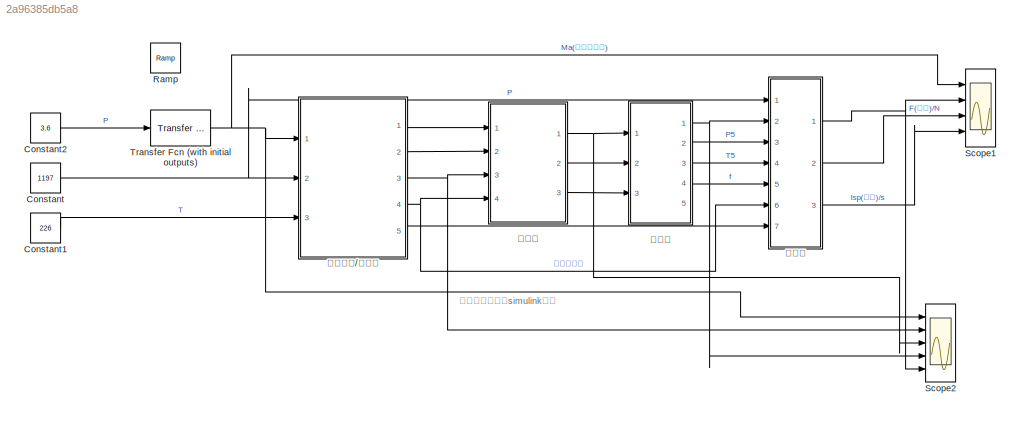
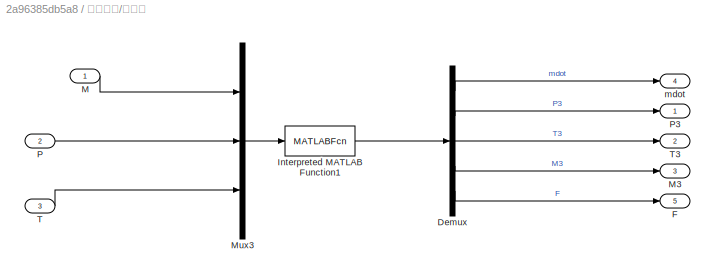
MODEL slx_2a96385db5a8
KIND model
CONFIG AbsTol = auto
CONFIG EnableMultiTasking = off
CONFIG FixedStep = auto
CONFIG MaxStep = auto
CONFIG MinStep = auto
CONFIG RelTol = 1e-3
CONFIG SampleTimeConstraint = Unconstrained
CONFIG Solver = VariableStepAuto
CONFIG SolverName = VariableStepAuto
CONFIG StartTime = 0.0
CONFIG StopTime = 10
BLOCK [Constant] Constant
  Value = 1197
BLOCK [Constant] Constant1
  Value = 226
BLOCK [Constant] Constant2
  Value = 3.6
BLOCK [Reference] Ramp  REF=simulink/Sources/Ramp
  Ports = [0, 1]
  SourceBlock = simulink/Sources/Ramp
  SourceProductBaseCode = SL
  SourceProductName = Simulink
  SourceType = Ramp
BLOCK [Scope] Scope1
  Floating = off
  NumInputPorts = 4
  Ports = [4]
  ScopeSpecificationString = Simulink.scopes.TimeScopeBlockCfg('CurrentConfiguration', extmgr.ConfigurationSet(extmgr.Configuration('Core','General UI',true,'FigureColor',[1 1 1]),extmgr.Configuration('Core','Source UI',true),extmgr.Configuration('Sources','WiredSimulink',true,'DataLoggingVariableName','ScopeData1'),extmgr.Configuration('Visuals','Time Domain',true,'SerializedDisplays',{struct('MinYLimReal','2.47584','MaxYLim...<+3594ch>
BLOCK [Scope] Scope2
  Floating = off
  NumInputPorts = 5
  Ports = [5]
  ScopeSpecificationString = Simulink.scopes.TimeScopeBlockCfg('CurrentConfiguration', extmgr.ConfigurationSet(extmgr.Configuration('Core','General UI',true,'FigureColor',[1 1 1]),extmgr.Configuration('Core','Source UI',true),extmgr.Configuration('Sources','WiredSimulink',true,'DataLoggingVariableName','ScopeData1'),extmgr.Configuration('Visuals','Time Domain',true,'SerializedDisplays',{struct('MinYLimReal','2.47584','MaxYLim...<+5353ch>
BLOCK [Reference] Transfer Fcn (with initial outputs)  REF=simulink_extras/Additional
Linear/Transfer Fcn
(with initial outputs)
  Ports = [1, 1]
  SourceBlock = simulink_extras/Additional\nLinear/Transfer Fcn\n(with initial outputs)
  SourceProductBaseCode = SL
  SourceProductName = Simulink
  SourceType = Transfer Function with Initial Outputs
BLOCK [SubSystem] 前体压缩//进气道
  Ports = [3, 5]
  RequestExecContextInheritance = off
BLOCK [Demux] 前体压缩//进气道/Demux
  DisplayOption = bar
  Outputs = 5
  Ports = [1, 5]
BLOCK [Outport] 前体压缩//进气道/F
  IconDisplay = Port number
  Port = 5
BLOCK [MATLABFcn] 前体压缩//进气道/Interpreted MATLAB Function1
  MATLABFcn = inlet_v(u(1),u(2),u(3))
  OutputDimensions = 5
  Ports = [1, 1]
BLOCK [Inport] 前体压缩//进气道/M
  IconDisplay = Port number
BLOCK [Outport] 前体压缩//进气道/M3
  IconDisplay = Port number
  Port = 3
BLOCK [Mux] 前体压缩//进气道/Mux3
  DisplayOption = bar
  Inputs = 3
  Ports = [3, 1]
BLOCK [Inport] 前体压缩//进气道/P
  IconDisplay = Port number
  Port = 2
BLOCK [Outport] 前体压缩//进气道/P3
  IconDisplay = Port number
BLOCK [Inport] 前体压缩//进气道/T
  IconDisplay = Port number
  Port = 3
BLOCK [Outport] 前体压缩//进气道/T3
  IconDisplay = Port number
  Port = 2
BLOCK [Outport] 前体压缩//进气道/mdot
  IconDisplay = Port number
  Port = 4
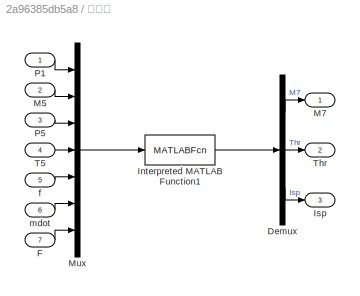
BLOCK [SubSystem] 尾喷管
  Ports = [7, 3]
  RequestExecContextInheritance = off
BLOCK [Demux] 尾喷管/Demux
  DisplayOption = bar
  Outputs = 3
  Ports = [1, 3]
BLOCK [Inport] 尾喷管/F
  IconDisplay = Port number
  Port = 7
BLOCK [MATLABFcn] 尾喷管/Interpreted MATLAB Function1
  MATLABFcn = nozzle(u(1),u(2),u(3),u(4),u(5),u(6),u(7))
  OutputDimensions = 3
  Ports = [1, 1]
BLOCK [Outport] 尾喷管/Isp
  IconDisplay = Port number
  Port = 3
BLOCK [Inport] 尾喷管/M5
  IconDisplay = Port number
  Port = 2
BLOCK [Outport] 尾喷管/M7
  IconDisplay = Port number
BLOCK [Mux] 尾喷管/Mux
  DisplayOption = bar
  Inputs = 7
  Ports = [7, 1]
BLOCK [Inport] 尾喷管/P1
  IconDisplay = Port number
BLOCK [Inport] 尾喷管/P5
  IconDisplay = Port number
  Port = 3
BLOCK [Inport] 尾喷管/T5
  IconDisplay = Port number
  Port = 4
BLOCK [Outport] 尾喷管/Thr
  IconDisplay = Port number
  Port = 2
BLOCK [Inport] 尾喷管/f
  IconDisplay = Port number
  Port = 5
BLOCK [Inport] 尾喷管/mdot
  IconDisplay = Port number
  Port = 6
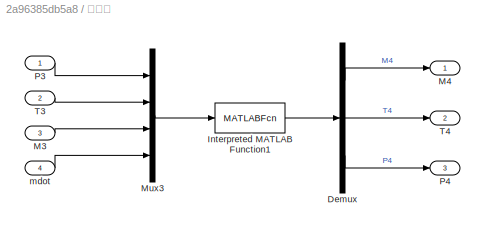
BLOCK [SubSystem] 扩散管
  Ports = [4, 3]
  RequestExecContextInheritance = off
BLOCK [Demux] 扩散管/Demux
  DisplayOption = bar
  Outputs = 3
  Ports = [1, 3]
BLOCK [MATLABFcn] 扩散管/Interpreted MATLAB Function1
  MATLABFcn = diffuser(u(1),u(2),u(3),u(4))
  OutputDimensions = 3
  Ports = [1, 1]
BLOCK [Inport] 扩散管/M3
  IconDisplay = Port number
  Port = 3
BLOCK [Outport] 扩散管/M4
  IconDisplay = Port number
BLOCK [Mux] 扩散管/Mux3
  DisplayOption = bar
  Ports = [4, 1]
BLOCK [Inport] 扩散管/P3
  IconDisplay = Port number
BLOCK [Outport] 扩散管/P4
  IconDisplay = Port number
  Port = 3
BLOCK [Inport] 扩散管/T3
  IconDisplay = Port number
  Port = 2
BLOCK [Outport] 扩散管/T4
  IconDisplay = Port number
  Port = 2
BLOCK [Inport] 扩散管/mdot
  IconDisplay = Port number
  Port = 4
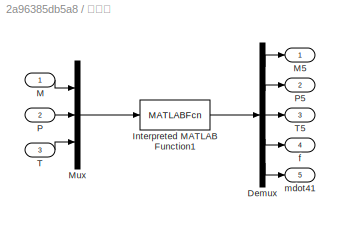
BLOCK [SubSystem] 燃烧室
  Ports = [3, 5]
  RequestExecContextInheritance = off
BLOCK [Demux] 燃烧室/Demux
  DisplayOption = bar
  Outputs = 5
  Ports = [1, 5]
BLOCK [MATLABFcn] 燃烧室/Interpreted MATLAB Function1
  MATLABFcn = combustion(u(1),u(2),u(3))
  OutputDimensions = 5
  Ports = [1, 1]
BLOCK [Inport] 燃烧室/M
  IconDisplay = Port number
BLOCK [Outport] 燃烧室/M5
  IconDisplay = Port number
BLOCK [Mux] 燃烧室/Mux
  DisplayOption = bar
  Inputs = 3
  Ports = [3, 1]
BLOCK [Inport] 燃烧室/P
  IconDisplay = Port number
  Port = 2
BLOCK [Outport] 燃烧室/P5
  IconDisplay = Port number
  Port = 2
BLOCK [Inport] 燃烧室/T
  IconDisplay = Port number
  Port = 3
BLOCK [Outport] 燃烧室/T5
  IconDisplay = Port number
  Port = 3
BLOCK [Outport] 燃烧室/f
  IconDisplay = Port number
  Port = 4
BLOCK [Outport] 燃烧室/mdot41
  IconDisplay = Port number
  Port = 5
ANNOTATION (root): 亚燃冲压发动机simulink仿真
LINE Constant1:1 -> 前体压缩//进气道:3
LINE Constant2:1 -> Transfer Fcn (with initial outputs):1
NET Constant:1 -> 前体压缩//进气道:2, 尾喷管:1
NET Transfer Fcn (with initial outputs):1 -> Scope1:1, Scope2:1, 前体压缩//进气道:1
LINE 前体压缩//进气道/Demux:1 -> 前体压缩//进气道/mdot:1
LINE 前体压缩//进气道/Demux:2 -> 前体压缩//进气道/P3:1
LINE 前体压缩//进气道/Demux:3 -> 前体压缩//进气道/T3:1
LINE 前体压缩//进气道/Demux:4 -> 前体压缩//进气道/M3:1
LINE 前体压缩//进气道/Demux:5 -> 前体压缩//进气道/F:1
LINE 前体压缩//进气道/Interpreted MATLAB Function1:1 -> 前体压缩//进气道/Demux:1
LINE 前体压缩//进气道/M:1 -> 前体压缩//进气道/Mux3:1
LINE 前体压缩//进气道/Mux3:1 -> 前体压缩//进气道/Interpreted MATLAB Function1:1
LINE 前体压缩//进气道/P:1 -> 前体压缩//进气道/Mux3:2
LINE 前体压缩//进气道/T:1 -> 前体压缩//进气道/Mux3:3
LINE 前体压缩//进气道:1 -> 扩散管:1
LINE 前体压缩//进气道:2 -> 扩散管:2
NET 前体压缩//进气道:3 -> Scope2:2, 扩散管:3
NET 前体压缩//进气道:4 -> 尾喷管:6, 扩散管:4
LINE 前体压缩//进气道:5 -> 尾喷管:7
LINE 尾喷管/Demux:1 -> 尾喷管/M7:1
LINE 尾喷管/Demux:2 -> 尾喷管/Thr:1
LINE 尾喷管/Demux:3 -> 尾喷管/Isp:1
LINE 尾喷管/F:1 -> 尾喷管/Mux:7
LINE 尾喷管/Interpreted MATLAB Function1:1 -> 尾喷管/Demux:1
LINE 尾喷管/M5:1 -> 尾喷管/Mux:2
LINE 尾喷管/Mux:1 -> 尾喷管/Interpreted MATLAB Function1:1
LINE 尾喷管/P1:1 -> 尾喷管/Mux:1
LINE 尾喷管/P5:1 -> 尾喷管/Mux:3
LINE 尾喷管/T5:1 -> 尾喷管/Mux:4
LINE 尾喷管/f:1 -> 尾喷管/Mux:5
LINE 尾喷管/mdot:1 -> 尾喷管/Mux:6
NET 尾喷管:1 -> Scope1:2, Scope2:5
LINE 尾喷管:2 -> Scope1:3
LINE 尾喷管:3 -> Scope1:4
LINE 扩散管/Demux:1 -> 扩散管/M4:1
LINE 扩散管/Demux:2 -> 扩散管/T4:1
LINE 扩散管/Demux:3 -> 扩散管/P4:1
LINE 扩散管/Interpreted MATLAB Function1:1 -> 扩散管/Demux:1
LINE 扩散管/M3:1 -> 扩散管/Mux3:3
LINE 扩散管/Mux3:1 -> 扩散管/Interpreted MATLAB Function1:1
LINE 扩散管/P3:1 -> 扩散管/Mux3:1
LINE 扩散管/T3:1 -> 扩散管/Mux3:2
LINE 扩散管/mdot:1 -> 扩散管/Mux3:4
NET 扩散管:1 -> Scope2:3, 燃烧室:1
LINE 扩散管:2 -> 燃烧室:2
LINE 扩散管:3 -> 燃烧室:3
LINE 燃烧室/Demux:1 -> 燃烧室/M5:1
LINE 燃烧室/Demux:2 -> 燃烧室/P5:1
LINE 燃烧室/Demux:3 -> 燃烧室/T5:1
LINE 燃烧室/Demux:4 -> 燃烧室/f:1
LINE 燃烧室/Demux:5 -> 燃烧室/mdot41:1
LINE 燃烧室/Interpreted MATLAB Function1:1 -> 燃烧室/Demux:1
LINE 燃烧室/M:1 -> 燃烧室/Mux:1
LINE 燃烧室/Mux:1 -> 燃烧室/Interpreted MATLAB Function1:1
LINE 燃烧室/P:1 -> 燃烧室/Mux:2
LINE 燃烧室/T:1 -> 燃烧室/Mux:3
NET 燃烧室:1 -> Scope2:4, 尾喷管:2
LINE 燃烧室:2 -> 尾喷管:3
LINE 燃烧室:3 -> 尾喷管:4
LINE 燃烧室:4 -> 尾喷管:5
note: NET lines group one-source signal fan-out (src -> all destinations, sorted); 1:1 wires keep LINE
